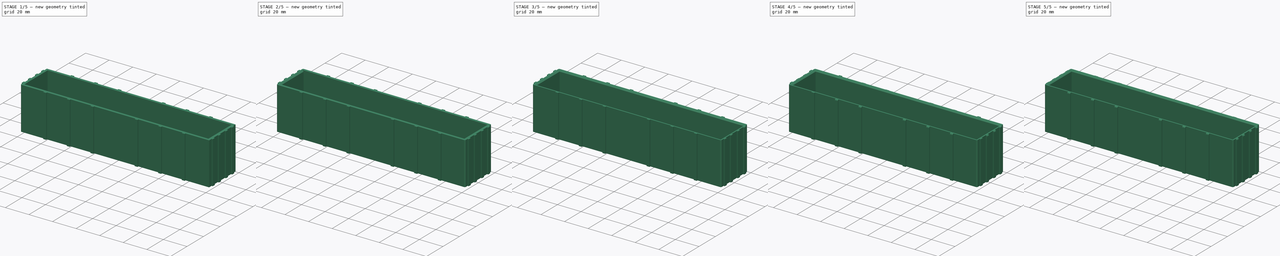
[diagram: build sequence overview — one tinted view per stage of 5, left to right]
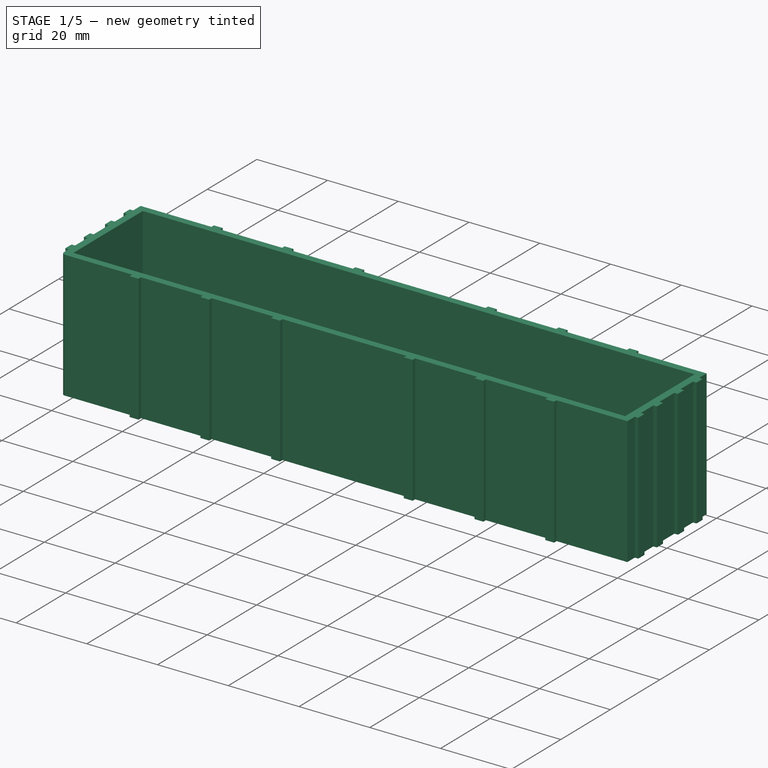
[diagram: stage 1 of 5 — iso view after this stage's code; geometry added in this stage tinted green]
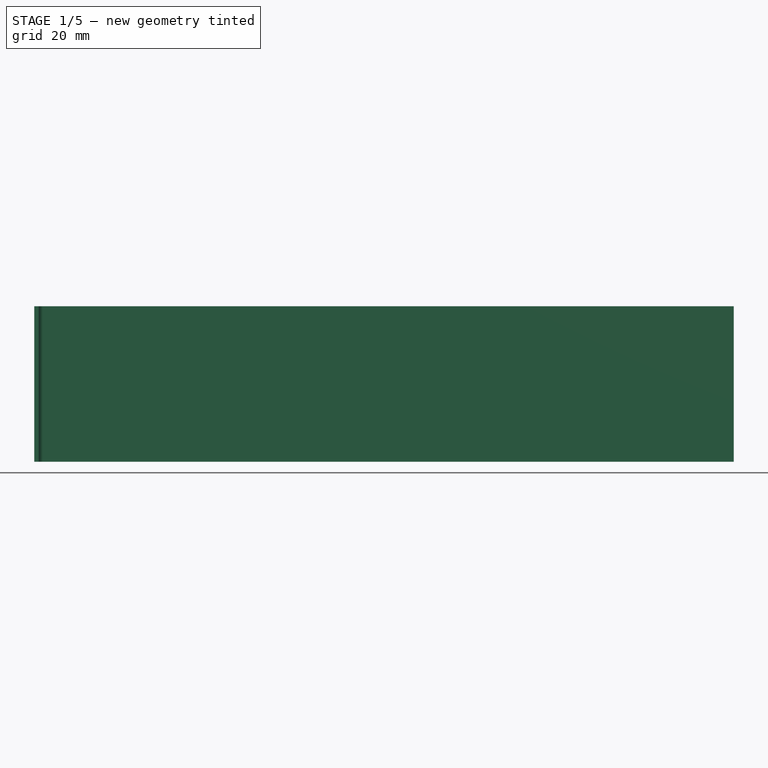
[diagram: stage 1 of 5 — front view after this stage's code; geometry added in this stage tinted green]
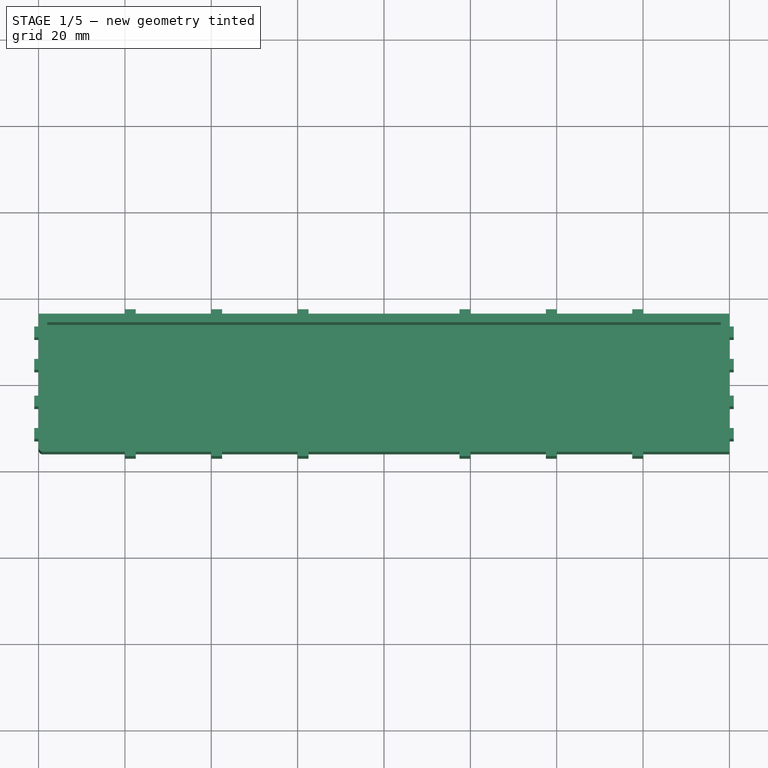
[diagram: stage 1 of 5 — top view after this stage's code; geometry added in this stage tinted green]
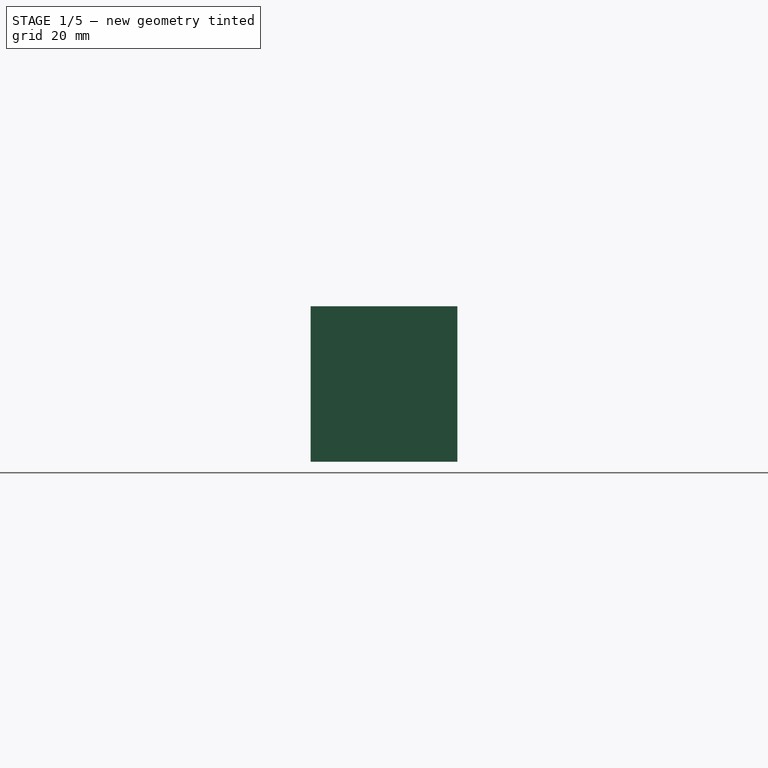
[diagram: stage 1 of 5 — right view after this stage's code; geometry added in this stage tinted green]
FCSTD DOCUMENT  (FreeCAD 0.18R16146 (Git))
Label: goods-open-carrier
License: All rights reserved
LicenseURL: http://en.wikipedia.org/wiki/All_rights_reserved
objects: PartDesign::Fillet×11, Sketcher::SketchObject×4, PartDesign::Chamfer×4, PartDesign::Pad×1, PartDesign::Pocket×1, PartDesign::Body×1
note: 24 computed .brp shape members not serialized (recipe doc carries the construction recipe); baked Part::Feature solids carry a one-line shape summary decoded from their .brp

FEATURE [Sketcher::SketchObject] Sketch
  MapMode = 5
  Support = -> [XY_Plane]
  sketch-geometry (86):
    g0: LineSegment StartX=-80 StartY=16 StartZ=0 EndX=-60 EndY=16 EndZ=0
    g1: LineSegment StartX=80 StartY=16 StartZ=0 EndX=80 EndY=13 EndZ=0
    g2: LineSegment StartX=80 StartY=-16 StartZ=0 EndX=60 EndY=-16 EndZ=0
    g3: LineSegment StartX=-80 StartY=-16 StartZ=0 EndX=-80 EndY=-13 EndZ=0
    g4: LineSegment [constr] StartX=-80 StartY=0 StartZ=0 EndX=80 EndY=0 EndZ=0
    g5: LineSegment [constr] StartX=0 StartY=16 StartZ=0 EndX=0 EndY=-16 EndZ=0
    g6: LineSegment StartX=-60 StartY=17 StartZ=0 EndX=-57.5 EndY=17 EndZ=0
    g7: LineSegment StartX=-57.5 StartY=17 StartZ=0 EndX=-57.5 EndY=16 EndZ=0
    g8: LineSegment StartX=-60 StartY=16 StartZ=0 EndX=-60 EndY=17 EndZ=0
    g9: LineSegment StartX=-57.5 StartY=16 StartZ=0 EndX=-40 EndY=16 EndZ=0
    g10: LineSegment StartX=-40 StartY=17 StartZ=0 EndX=-37.5 EndY=17 EndZ=0
    g11: LineSegment StartX=-37.5 StartY=17 StartZ=0 EndX=-37.5 EndY=16 EndZ=0
    g12: LineSegment StartX=-40 StartY=16 StartZ=0 EndX=-40 EndY=17 EndZ=0
    g13: LineSegment StartX=-37.5 StartY=16 StartZ=0 EndX=-20 EndY=16 EndZ=0
    g14: LineSegment StartX=-20 StartY=17 StartZ=0 EndX=-17.5 EndY=17 EndZ=0
    g15: LineSegment StartX=-17.5 StartY=17 StartZ=0 EndX=-17.5 EndY=16 EndZ=0
    g16: LineSegment StartX=-20 StartY=16 StartZ=0 EndX=-20 EndY=17 EndZ=0
    g17: LineSegment StartX=-17.5 StartY=16 StartZ=0 EndX=17.5 EndY=16 EndZ=0
    g18: LineSegment StartX=60 StartY=17 StartZ=0 EndX=57.5 EndY=17 EndZ=0
    g19: LineSegment StartX=57.5 StartY=17 StartZ=0 EndX=57.5 EndY=16 EndZ=0
    g20: LineSegment StartX=60 StartY=16 StartZ=0 EndX=60 EndY=17 EndZ=0
    g21: LineSegment StartX=40 StartY=17 StartZ=0 EndX=37.5 EndY=17 EndZ=0
    g22: LineSegment StartX=37.5 StartY=17 StartZ=0 EndX=37.5 EndY=16 EndZ=0
    g23: LineSegment StartX=40 StartY=16 StartZ=0 EndX=40 EndY=17 EndZ=0
    g24: LineSegment StartX=20 StartY=17 StartZ=0 EndX=17.5 EndY=17 EndZ=0
    g25: LineSegment StartX=17.5 StartY=17 StartZ=0 EndX=17.5 EndY=16 EndZ=0
    g26: LineSegment StartX=20 StartY=16 StartZ=0 EndX=20 EndY=17 EndZ=0
    g27: LineSegment StartX=20 StartY=16 StartZ=0 EndX=37.5 EndY=16 EndZ=0
    g28: LineSegment StartX=40 StartY=16 StartZ=0 EndX=57.5 EndY=16 EndZ=0
    g29: LineSegment StartX=60 StartY=16 StartZ=0 EndX=80 EndY=16 EndZ=0
    g30: LineSegment StartX=-60 StartY=-17 StartZ=0 EndX=-57.5 EndY=-17 EndZ=0
    g31: LineSegment StartX=-57.5 StartY=-17 StartZ=0 EndX=-57.5 EndY=-16 EndZ=0
    g32: LineSegment StartX=-60 StartY=-16 StartZ=0 EndX=-60 EndY=-17 EndZ=0
    g33: LineSegment StartX=-40 StartY=-17 StartZ=0 EndX=-37.5 EndY=-17 EndZ=0
    g34: LineSegment StartX=-37.5 StartY=-17 StartZ=0 EndX=-37.5 EndY=-16 EndZ=0
    g35: LineSegment StartX=-40 StartY=-16 StartZ=0 EndX=-40 EndY=-17 EndZ=0
    g36: LineSegment StartX=-20 StartY=-17 StartZ=0 EndX=-17.5 EndY=-17 EndZ=0
    g37: LineSegment StartX=-17.5 StartY=-17 StartZ=0 EndX=-17.5 EndY=-16 EndZ=0
    g38: LineSegment StartX=-20 StartY=-16 StartZ=0 EndX=-20 EndY=-17 EndZ=0
    g39: LineSegment StartX=60 StartY=-17 StartZ=0 EndX=57.5 EndY=-17 EndZ=0
    g40: LineSegment StartX=57.5 StartY=-17 StartZ=0 EndX=57.5 EndY=-16 EndZ=0
    g41: LineSegment StartX=60 StartY=-16 StartZ=0 EndX=60 EndY=-17 EndZ=0
    g42: LineSegment StartX=40 StartY=-17 StartZ=0 EndX=37.5 EndY=-17 EndZ=0
    g43: LineSegment StartX=37.5 StartY=-17 StartZ=0 EndX=37.5 EndY=-16 EndZ=0
    g44: LineSegment StartX=40 StartY=-16 StartZ=0 EndX=40 EndY=-17 EndZ=0
    g45: LineSegment StartX=20 StartY=-17 StartZ=0 EndX=17.5 EndY=-17 EndZ=0
    g46: LineSegment StartX=17.5 StartY=-17 StartZ=0 EndX=17.5 EndY=-16 EndZ=0
    g47: LineSegment StartX=20 StartY=-16 StartZ=0 EndX=20 EndY=-17 EndZ=0
    g48: LineSegment StartX=-60 StartY=-16 StartZ=0 EndX=-80 EndY=-16 EndZ=0
    g49: LineSegment StartX=-40 StartY=-16 StartZ=0 EndX=-57.5 EndY=-16 EndZ=0
    g50: LineSegment StartX=-20 StartY=-16 StartZ=0 EndX=-37.5 EndY=-16 EndZ=0
    g51: LineSegment StartX=17.5 StartY=-16 StartZ=0 EndX=-17.5 EndY=-16 EndZ=0
    g52: LineSegment StartX=37.5 StartY=-16 StartZ=0 EndX=20 EndY=-16 EndZ=0
    g53: LineSegment StartX=57.5 StartY=-16 StartZ=0 EndX=40 EndY=-16 EndZ=0
    g54: LineSegment StartX=-81 StartY=13 StartZ=0 EndX=-80 EndY=13 EndZ=0
    g55: LineSegment StartX=-80 StartY=10.5 StartZ=0 EndX=-81 EndY=10.5 EndZ=0
    g56: LineSegment StartX=-81 StartY=10.5 StartZ=0 EndX=-81 EndY=13 EndZ=0
    g57: LineSegment StartX=-80 StartY=13 StartZ=0 EndX=-80 EndY=16 EndZ=0
    g58: LineSegment StartX=-81 StartY=5.5 StartZ=0 EndX=-80 EndY=5.5 EndZ=0
    g59: LineSegment StartX=-80 StartY=3 StartZ=0 EndX=-81 EndY=3 EndZ=0
    g60: LineSegment StartX=-81 StartY=3 StartZ=0 EndX=-81 EndY=5.5 EndZ=0
    g61: LineSegment StartX=-80 StartY=5.5 StartZ=0 EndX=-80 EndY=10.5 EndZ=0
    g62: LineSegment StartX=-80 StartY=-3 StartZ=0 EndX=-81 EndY=-3 EndZ=0
    g63: LineSegment StartX=-81 StartY=-13 StartZ=0 EndX=-80 EndY=-13 EndZ=0
    g64: LineSegment StartX=-80 StartY=-10.5 StartZ=0 EndX=-81 EndY=-10.5 EndZ=0
    g65: LineSegment StartX=-81 StartY=-10.5 StartZ=0 EndX=-81 EndY=-13 EndZ=0
    g66: LineSegment StartX=-81 StartY=-5.5 StartZ=0 EndX=-80 EndY=-5.5 EndZ=0
    g67: LineSegment StartX=-81 StartY=-3 StartZ=0 EndX=-81 EndY=-5.5 EndZ=0
    g68: LineSegment StartX=-80 StartY=-3 StartZ=0 EndX=-80 EndY=3 EndZ=0
    g69: LineSegment StartX=-80 StartY=-10.5 StartZ=0 EndX=-80 EndY=-5.5 EndZ=0
    g70: LineSegment StartX=81 StartY=13 StartZ=0 EndX=80 EndY=13 EndZ=0
    g71: LineSegment StartX=80 StartY=10.5 StartZ=0 EndX=81 EndY=10.5 EndZ=0
    g72: LineSegment StartX=81 StartY=10.5 StartZ=0 EndX=81 EndY=13 EndZ=0
    g73: LineSegment StartX=81 StartY=5.5 StartZ=0 EndX=80 EndY=5.5 EndZ=0
    g74: LineSegment StartX=80 StartY=3 StartZ=0 EndX=81 EndY=3 EndZ=0
    g75: LineSegment StartX=81 StartY=3 StartZ=0 EndX=81 EndY=5.5 EndZ=0
    g76: LineSegment StartX=80 StartY=-3 StartZ=0 EndX=81 EndY=-3 EndZ=0
    g77: LineSegment StartX=81 StartY=-13 StartZ=0 EndX=80 EndY=-13 EndZ=0
    g78: LineSegment StartX=80 StartY=-10.5 StartZ=0 EndX=81 EndY=-10.5 EndZ=0
    g79: LineSegment StartX=81 StartY=-10.5 StartZ=0 EndX=81 EndY=-13 EndZ=0
    g80: LineSegment StartX=81 StartY=-5.5 StartZ=0 EndX=80 EndY=-5.5 EndZ=0
    g81: LineSegment StartX=81 StartY=-3 StartZ=0 EndX=81 EndY=-5.5 EndZ=0
    g82: LineSegment StartX=80 StartY=10.5 StartZ=0 EndX=80 EndY=5.5 EndZ=0
    g83: LineSegment StartX=80 StartY=3 StartZ=0 EndX=80 EndY=-3 EndZ=0
    g84: LineSegment StartX=80 StartY=-5.5 StartZ=0 EndX=80 EndY=-10.5 EndZ=0
    g85: LineSegment StartX=80 StartY=-13 StartZ=0 EndX=80 EndY=-16 EndZ=0
  constraints (240):
    c: Coincident(g29,g1)
    c: Coincident(g85,g2)
    c: Coincident(g48,g3)
    c: Coincident(g57,g0)
    c: Symmetric(g29,g0,g-2)
    c: Symmetric(g0,g48,g-1)
    c: Symmetric(g48,g85,g-2)
    c: Symmetric(g4,g4,g-2)
    c: PointOnObject(g4,g-1)
    c: DistanceX(g4,g4) = 160
    c: PointOnObject(g4,g1)
    c: DistanceY(g5,g5) = 32
    c: PointOnObject(g5,g-2)
    c: Symmetric(g5,g5,g-1)
    c: PointOnObject(g5,g0)
    c: Coincident(g6,g7)
    c: Coincident(g8,g6)
    c: Horizontal(g6)
    c: Vertical(g7)
    c: Vertical(g8)
    c: Tangent(g0,g9)
    c: Coincident(g8,g0)
    c: Coincident(g7,g9)
    c: DistanceX(g6,g6) = 2.5
    c: DistanceY(g8,g8) = 1
    c: DistanceX(g0,g0) = 20
    c: Coincident(g10,g11)
    c: Coincident(g12,g10)
    c: Horizontal(g10)
    c: Vertical(g11)
    c: Vertical(g12)
    c: Tangent(g9,g13)
    c: Coincident(g12,g9)
    c: Coincident(g11,g13)
    c: DistanceX(g10,g10) = 2.5
    c: DistanceY(g12,g12) = 1
    c: DistanceX(g0,g9) = 40
    c: Coincident(g14,g15)
    c: Coincident(g16,g14)
    c: Horizontal(g14)
    c: Vertical(g15)
    c: Vertical(g16)
    c: Tangent(g13,g17)
    c: Coincident(g16,g13)
    c: Coincident(g15,g17)
    c: DistanceX(g14,g14) = 2.5
    c: DistanceY(g16,g16) = 1
    c: DistanceX(g0,g13) = 60
    c: Coincident(g18,g19)
    c: Coincident(g20,g18)
    c: Horizontal(g18)
    c: Vertical(g19)
    c: Vertical(g20)
    c: Coincident(g21,g22)
    c: Coincident(g23,g21)
    c: Horizontal(g21)
    c: Vertical(g22)
    c: Vertical(g23)
    c: Coincident(g24,g25)
    c: Coincident(g26,g24)
    c: Horizontal(g24)
    c: Vertical(g25)
    c: Vertical(g26)
    c: PointOnObject(g17,g25)
    c: Tangent(g17,g27)
    c: PointOnObject(g27,g22)
    c: Tangent(g27,g28)
    c: PointOnObject(g29,g20)
    c: Tangent(g28,g29)
    c: DistanceX(g21,g21) = 2.5
    c: DistanceY(g23,g23) = 1
    c: DistanceX(g23,g1) = 40
    c: DistanceY(g19,g19) = 1
    c: DistanceX(g18,g18) = 2.5
    c: DistanceX(g20,g1) = 20
    c: DistanceX(g24,g24) = 2.5
    c: DistanceY(g25,g25) = 1
    c: DistanceX(g26,g1) = 60
    c: Equal(g26,g25)
    c: Equal(g23,g22)
    c: Equal(g19,g20)
    c: Coincident(g26,g27)
    c: Coincident(g23,g28)
    c: Coincident(g19,g28)
    c: Coincident(g30,g31)
    c: Coincident(g32,g30)
    c: Horizontal(g30)
    c: Vertical(g31)
    c: Vertical(g32)
    c: Coincident(g33,g34)
    c: Coincident(g35,g33)
    c: Horizontal(g33)
    c: Vertical(g34)
    c: Vertical(g35)
    c: Coincident(g36,g37)
    c: Coincident(g38,g36)
    c: Horizontal(g36)
    c: Vertical(g37)
    c: Vertical(g38)
    c: Coincident(g39,g40)
    c: Coincident(g41,g39)
    c: Horizontal(g39)
    c: Vertical(g40)
    c: Vertical(g41)
    c: Coincident(g42,g43)
    c: Coincident(g44,g42)
    c: Vertical(g43)
    c: Vertical(g44)
    c: Coincident(g45,g46)
    c: Coincident(g47,g45)
    c: Horizontal(g45)
    c: Vertical(g46)
    c: Vertical(g47)
    c: Equal(g47,g46)
    c: Equal(g44,g43)
    c: Equal(g40,g41)
    c: Tangent(g2,g48)
    c: Tangent(g2,g49)
    c: Tangent(g2,g50)
    c: PointOnObject(g51,g46)
    c: Tangent(g2,g51)
    c: Tangent(g2,g52)
    c: PointOnObject(g53,g40)
    c: Tangent(g2,g53)
    c: Coincident(g41,g2)
    c: Coincident(g44,g53)
    c: Coincident(g43,g52)
    c: Coincident(g47,g52)
    c: Coincident(g37,g51)
    c: Coincident(g34,g50)
    c: Coincident(g31,g49)
    c: DistanceY(g32,g32) = 1
    c: DistanceX(g30,g30) = 2.5
    c: DistanceY(g35,g35) = 1
    c: DistanceX(g33,g33) = 2.5
    c: DistanceY(g38,g38) = 1
    c: DistanceX(g36,g36) = 2.5
    c: DistanceY(g47,g47) = 1
    c: DistanceX(g45,g45) = 2.5
    c: DistanceY(g43,g43) = 1
    c: DistanceX(g42,g42) = 2.5
    c: DistanceY(g40,g40) = 1
    c: DistanceX(g39,g39) = 2.5
    c: DistanceX(g2,g85) = 20
    c: DistanceX(g44,g85) = 40
    c: DistanceX(g47,g85) = 60
    c: DistanceX(g3,g32) = 20
    c: DistanceX(g3,g35) = 40
    c: DistanceX(g3,g38) = 60
    c: Coincident(g32,g48)
    c: Coincident(g35,g49)
    c: Coincident(g38,g50)
    c: Coincident(g55,g56)
    c: Coincident(g56,g54)
    c: Horizontal(g54)
    c: Horizontal(g55)
    c: Vertical(g56)
    c: Tangent(g3,g57)
    c: Coincident(g54,g57)
    c: Coincident(g55,g61)
    c: DistanceX(g54,g54) = 1
    c: DistanceY(g56,g56) = 2.5
    c: DistanceY(g54,g0) = 3
    c: Coincident(g59,g60)
    c: Coincident(g60,g58)
    c: Horizontal(g58)
    c: Horizontal(g59)
    c: Vertical(g60)
    c: Tangent(g3,g61)
    c: Coincident(g58,g61)
    c: Coincident(g59,g68)
    c: DistanceY(g60,g60) = 2.5
    c: DistanceX(g58,g58) = 1
    c: DistanceY(g4,g68) = 3
    c: Coincident(g64,g65)
    c: Coincident(g65,g63)
    c: Horizontal(g63)
    c: Horizontal(g64)
    c: Vertical(g65)
    c: Coincident(g62,g67)
    c: Coincident(g67,g66)
    c: Horizontal(g66)
    c: Horizontal(g62)
    c: Vertical(g67)
    c: Tangent(g3,g68)
    c: Tangent(g3,g69)
    c: DistanceY(g67,g67) = 2.5
    c: DistanceY(g65,g65) = 2.5
    c: DistanceX(g62,g62) = 1
    c: DistanceX(g64,g64) = 1
    c: DistanceY(g62,g4) = 3
    c: DistanceY(g3,g3) = 3
    c: Coincident(g64,g69)
    c: Coincident(g3,g63)
    c: Coincident(g66,g69)
    c: Coincident(g62,g68)
    c: Coincident(g71,g72)
    c: Coincident(g72,g70)
    c: Horizontal(g70)
    c: Horizontal(g71)
    c: Vertical(g72)
    c: Coincident(g74,g75)
    c: Coincident(g75,g73)
    c: Horizontal(g73)
    c: Horizontal(g74)
    c: Vertical(g75)
    c: Coincident(g78,g79)
    c: Coincident(g79,g77)
    c: Horizontal(g77)
    c: Horizontal(g78)
    c: Vertical(g79)
    c: Coincident(g76,g81)
    c: Coincident(g81,g80)
    c: Horizontal(g80)
    c: Horizontal(g76)
    c: Vertical(g81)
    c: Tangent(g1,g82)
    c: Tangent(g82,g83)
    c: Tangent(g83,g84)
    c: Tangent(g84,g85)
    c: DistanceY(g72,g72) = 2.5
    c: DistanceY(g75,g75) = 2.5
    c: DistanceY(g81,g81) = 2.5
    c: DistanceY(g79,g79) = 2.5
    c: DistanceX(g70,g70) = 1
    c: DistanceX(g73,g73) = 1
    c: DistanceX(g76,g76) = 1
    c: DistanceX(g78,g78) = 1
    c: Coincident(g77,g85)
    c: Coincident(g78,g84)
    c: Coincident(g80,g84)
    c: Coincident(g76,g83)
    c: Coincident(g74,g83)
    c: Coincident(g73,g82)
    c: DistanceY(g1,g1) = 3
    c: DistanceY(g4,g74) = 3
    c: DistanceY(g76,g4) = 3
    c: DistanceY(g2,g77) = 3
    c: Coincident(g71,g82)
    c: Coincident(g70,g1)
FEATURE [PartDesign::Pad] Pad
  Length = 36
  Length2 = 100
  Profile = -> Sketch
  Type = 0
FEATURE [Sketcher::SketchObject] Sketch001
  MapMode = 5
  Placement = pos=(0,0,36) rot=(0,0,1;0rad)
  Support = -> [Pad]
  sketch-geometry (4):
    g0: LineSegment StartX=-78 StartY=14 StartZ=0 EndX=78 EndY=14 EndZ=0
    g1: LineSegment StartX=78 StartY=14 StartZ=0 EndX=78 EndY=-14 EndZ=0
    g2: LineSegment StartX=78 StartY=-14 StartZ=0 EndX=-78 EndY=-14 EndZ=0
    g3: LineSegment StartX=-78 StartY=-14 StartZ=0 EndX=-78 EndY=14 EndZ=0
  constraints (9):
    c: Coincident(g0,g1)
    c: Coincident(g1,g2)
    c: Coincident(g2,g3)
    c: Coincident(g3,g0)
    c: Symmetric(g0,g0,g-2)
    c: Symmetric(g0,g2,g-1)
    c: Symmetric(g2,g1,g-2)
    c: DistanceX(g0,g0) = 156
    c: DistanceY(g3,g3) = 28
FEATURE [PartDesign::Pocket] Pocket
  BaseFeature = -> Pad
  Length = 35
  Length2 = 100
  Profile = -> Sketch001
  Type = 0
FEATURE [PartDesign::Fillet] Fillet
  Base = -> Pocket [Edge251]
  BaseFeature = -> Pocket
  Radius = 1
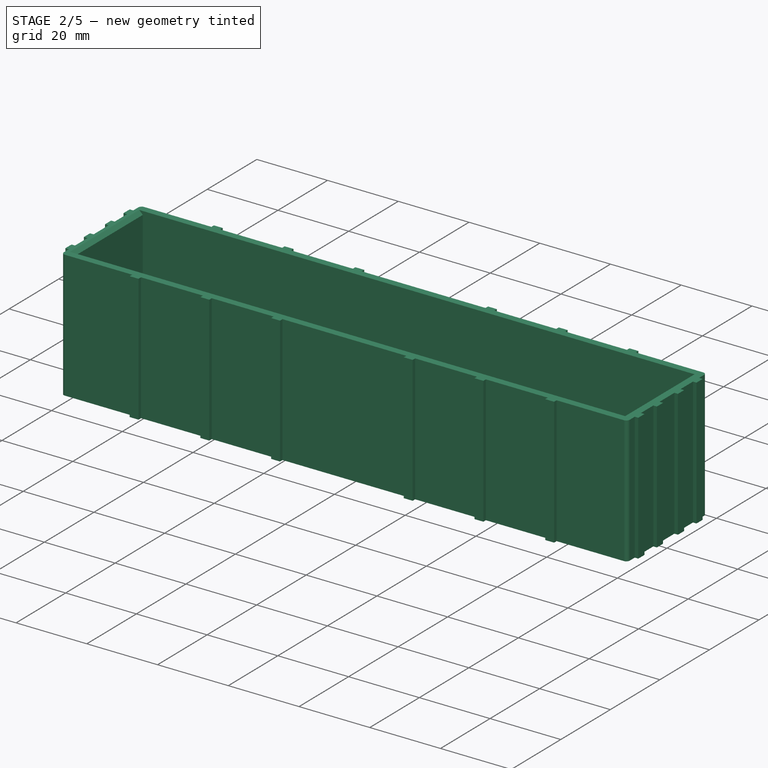
[diagram: stage 2 of 5 — iso view after this stage's code; geometry added in this stage tinted green]
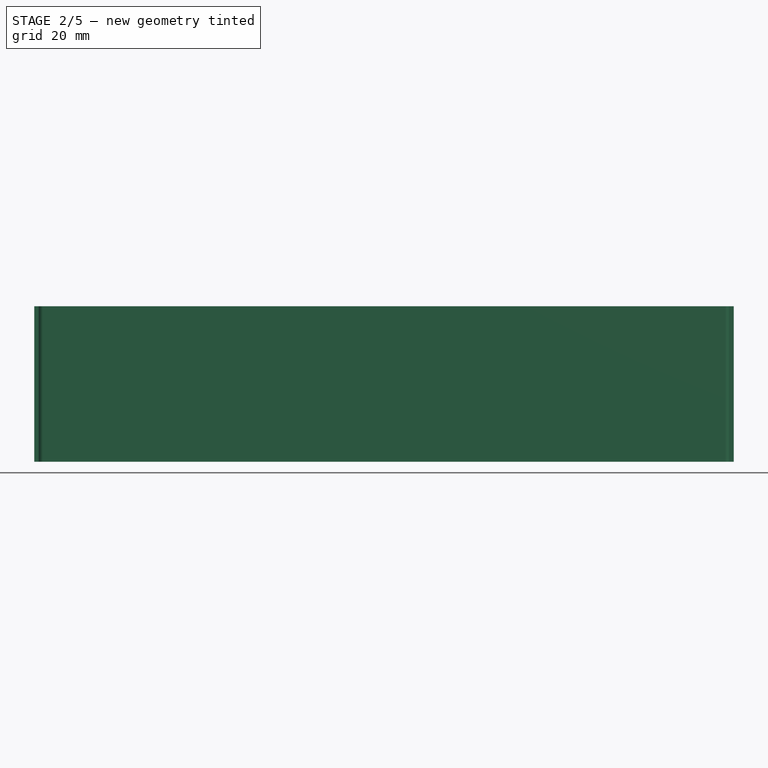
[diagram: stage 2 of 5 — front view after this stage's code; geometry added in this stage tinted green]
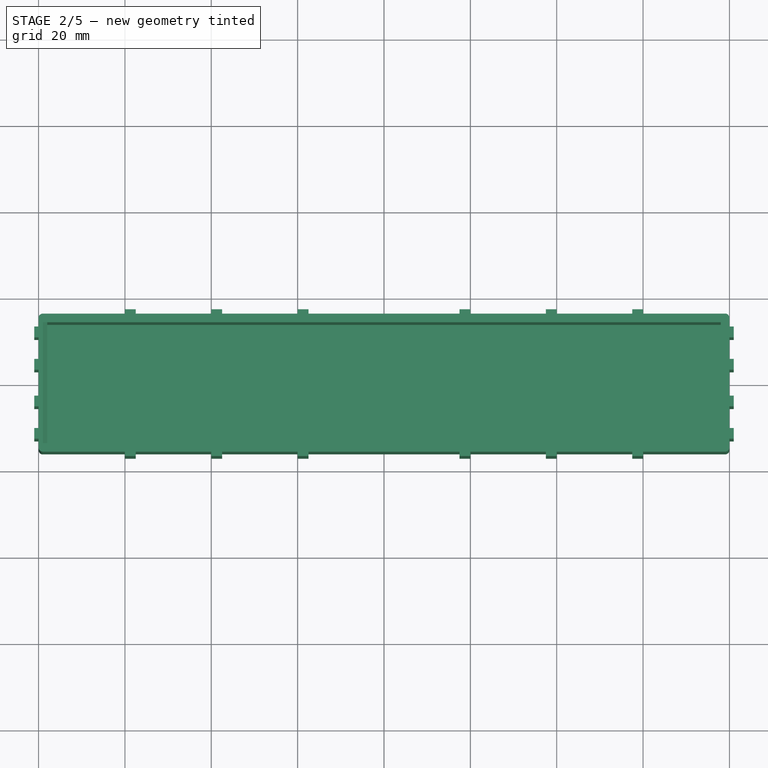
[diagram: stage 2 of 5 — top view after this stage's code; geometry added in this stage tinted green]
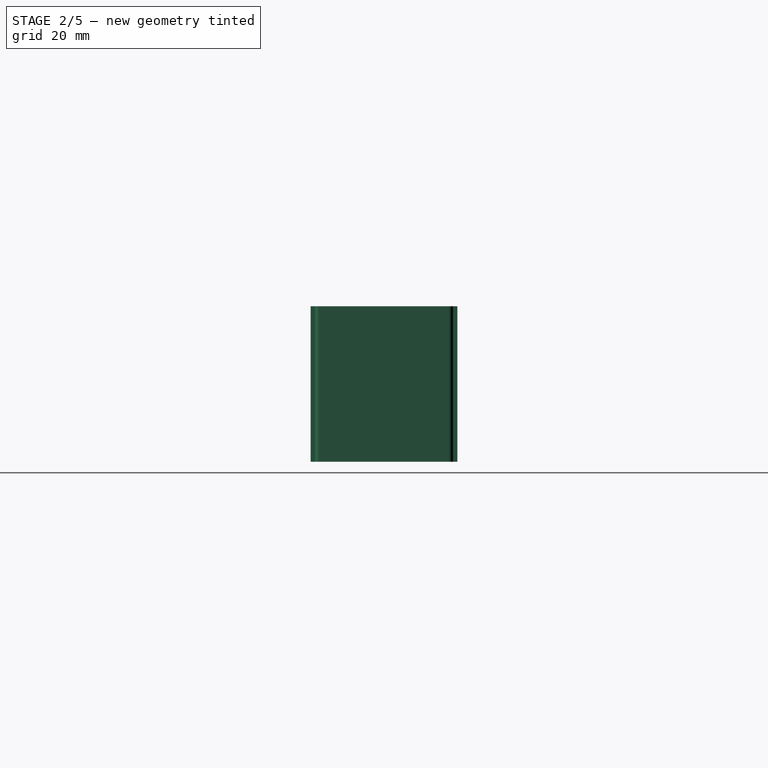
[diagram: stage 2 of 5 — right view after this stage's code; geometry added in this stage tinted green]
FEATURE [PartDesign::Fillet] Fillet001
  Base = -> Fillet [Edge157]
  BaseFeature = -> Fillet
  Radius = 1
FEATURE [PartDesign::Fillet] Fillet002
  Base = -> Fillet001 [Edge190]
  BaseFeature = -> Fillet001
  Radius = 1
FEATURE [PartDesign::Fillet] Fillet003
  Base = -> Fillet002 [Edge159]
  BaseFeature = -> Fillet002
  Radius = 1
FEATURE [PartDesign::Chamfer] Chamfer
  Base = -> Fillet003 [Edge268]
  BaseFeature = -> Fillet003
  Size = 1
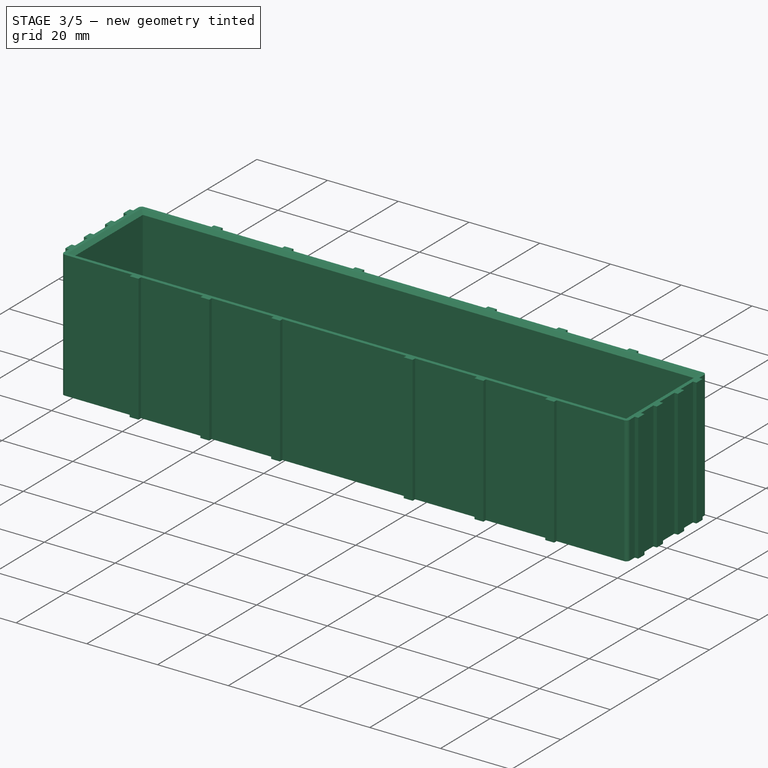
[diagram: stage 3 of 5 — iso view after this stage's code; geometry added in this stage tinted green]
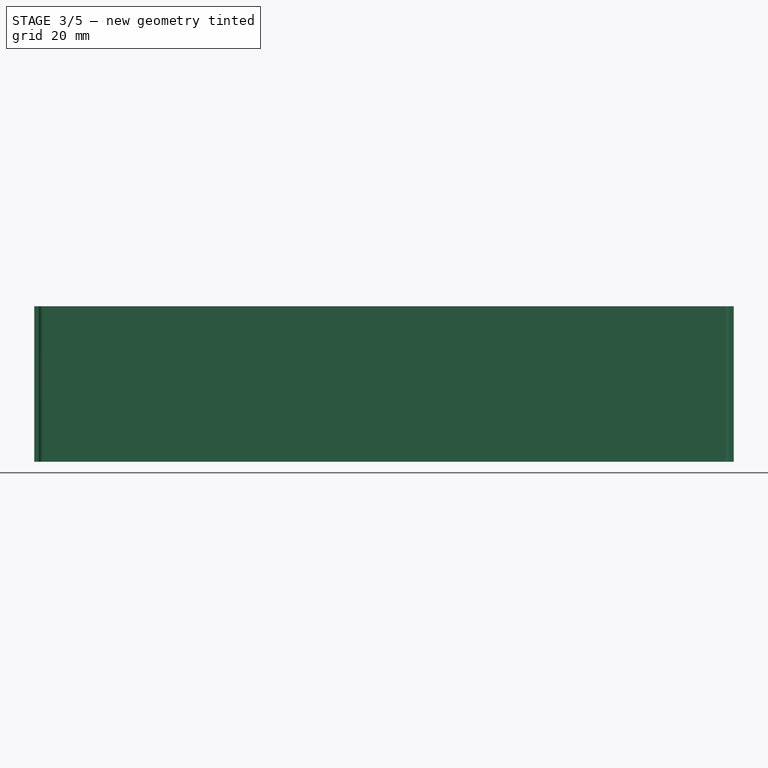
[diagram: stage 3 of 5 — front view after this stage's code; geometry added in this stage tinted green]
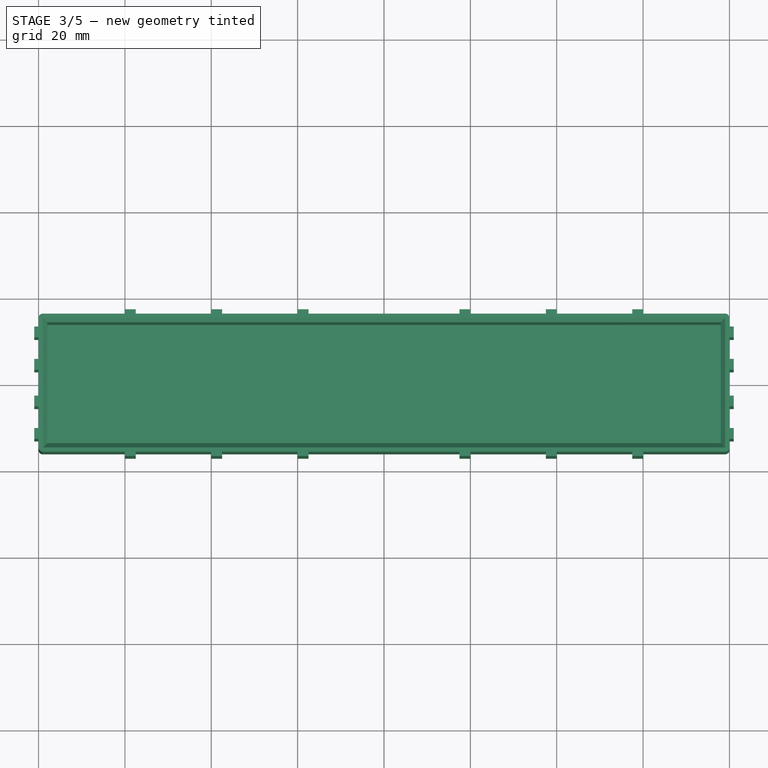
[diagram: stage 3 of 5 — top view after this stage's code; geometry added in this stage tinted green]
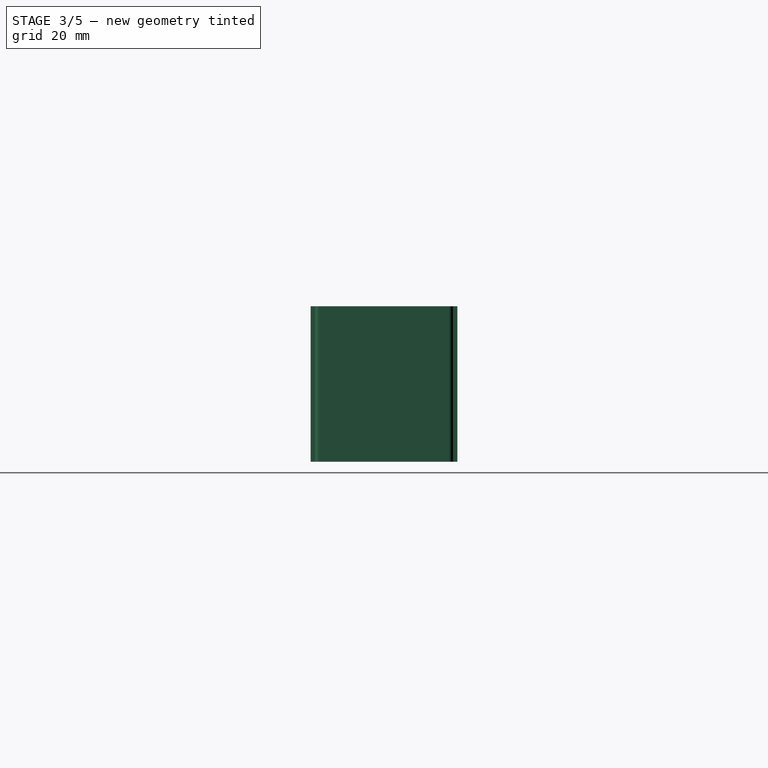
[diagram: stage 3 of 5 — right view after this stage's code; geometry added in this stage tinted green]
FEATURE [PartDesign::Chamfer] Chamfer001
  Base = -> Chamfer [Edge6]
  BaseFeature = -> Chamfer
  Size = 1
FEATURE [PartDesign::Chamfer] Chamfer002
  Base = -> Chamfer001 [Edge6]
  BaseFeature = -> Chamfer001
  Size = 1
FEATURE [PartDesign::Chamfer] Chamfer003
  Base = -> Chamfer002 [Edge2]
  BaseFeature = -> Chamfer002
  Size = 1
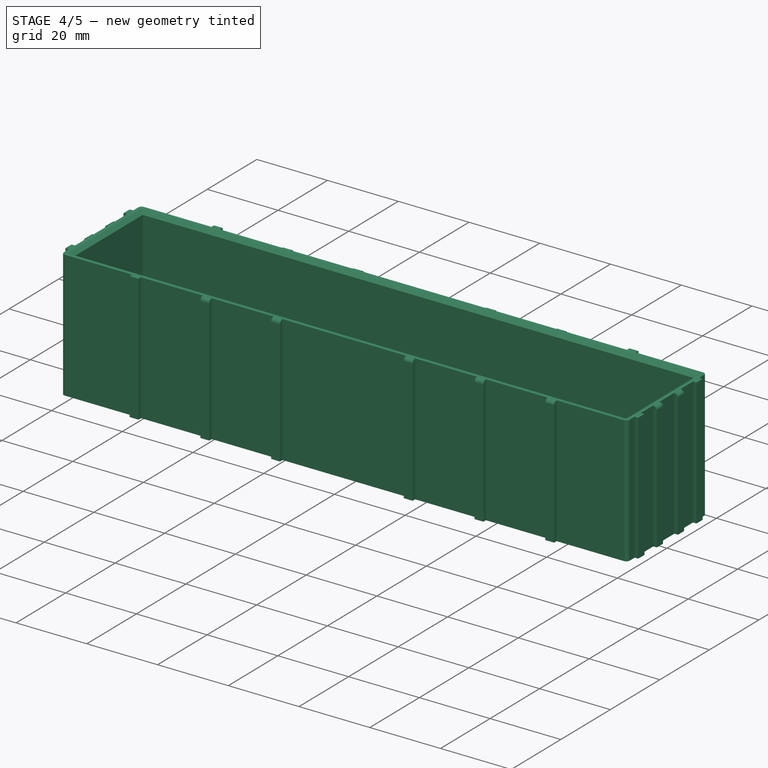
[diagram: stage 4 of 5 — iso view after this stage's code; geometry added in this stage tinted green]
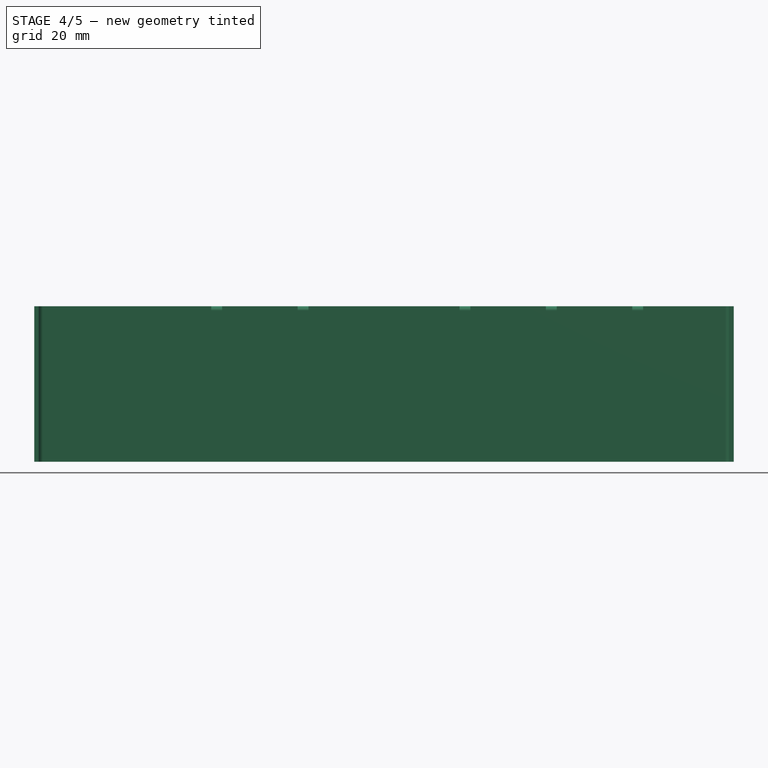
[diagram: stage 4 of 5 — front view after this stage's code; geometry added in this stage tinted green]
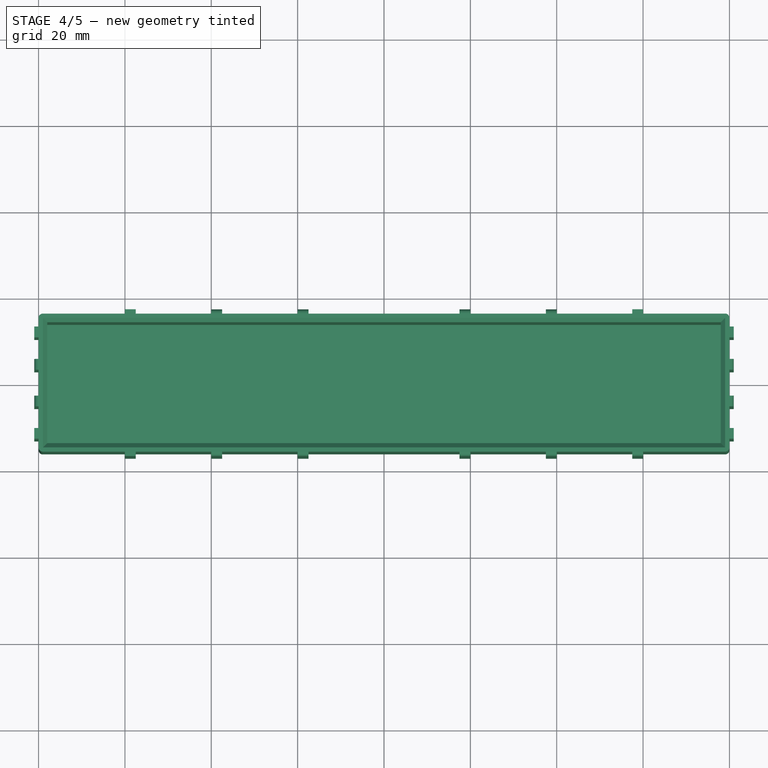
[diagram: stage 4 of 5 — top view after this stage's code; geometry added in this stage tinted green]
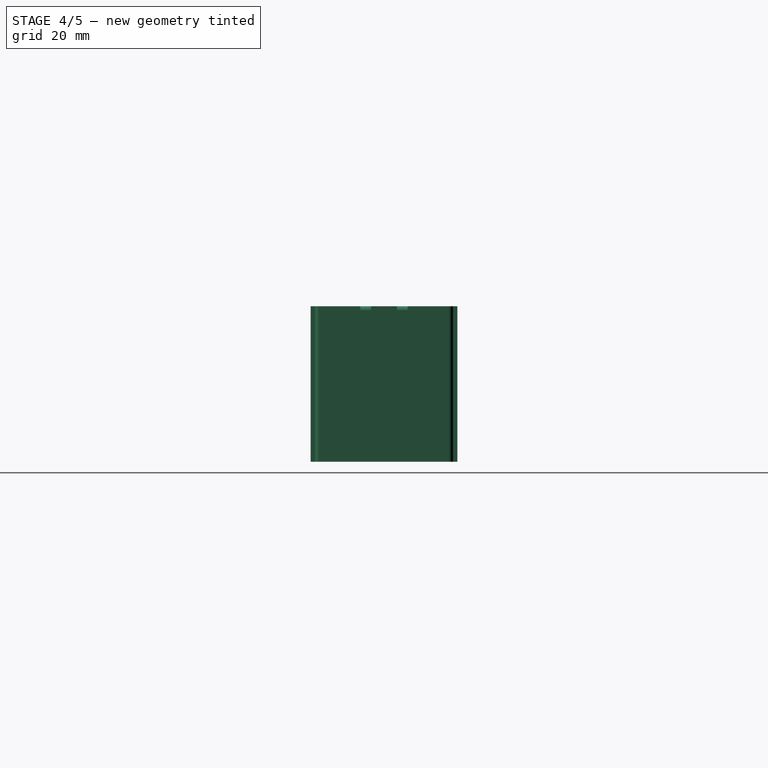
[diagram: stage 4 of 5 — right view after this stage's code; geometry added in this stage tinted green]
FEATURE [PartDesign::Fillet] Fillet004
  Base = -> Chamfer003 [Edge44]
  BaseFeature = -> Chamfer003
  Radius = 1
FEATURE [PartDesign::Fillet] Fillet005
  Base = -> Fillet004 [Edge6]
  BaseFeature = -> Fillet004
  Radius = 1
FEATURE [PartDesign::Fillet] Fillet006
  Base = -> Fillet005 [Edge47,Edge55,Edge78,Edge70,Edge11,Edge19,Edge83,Edge62,Edge26,Edge34]
  BaseFeature = -> Fillet005
  Radius = 1
FEATURE [PartDesign::Fillet] Fillet007
  Base = -> Fillet006 [Edge19]
  BaseFeature = -> Fillet006
  Radius = 1
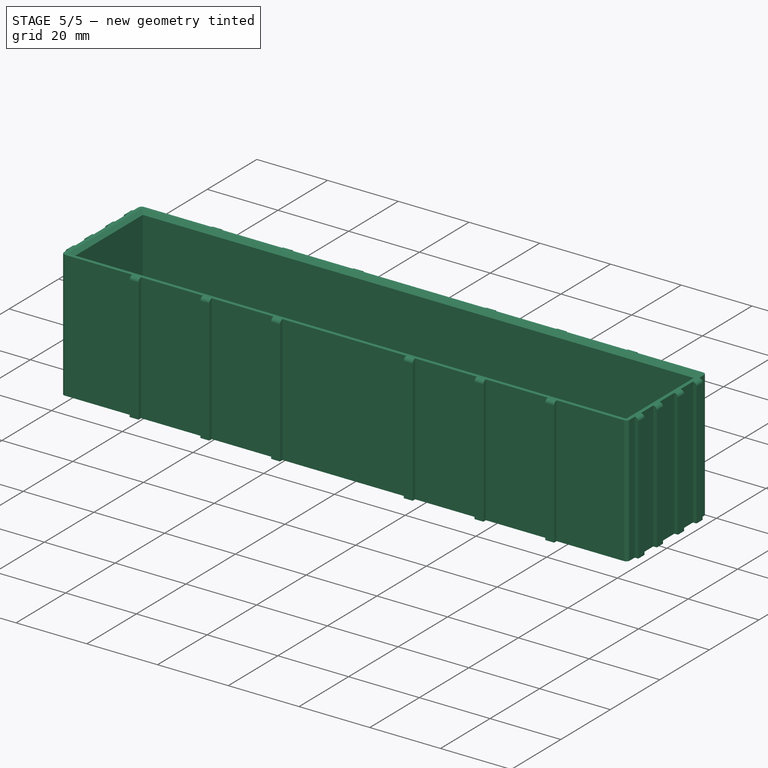
[diagram: stage 5 of 5 — iso view after this stage's code; geometry added in this stage tinted green]
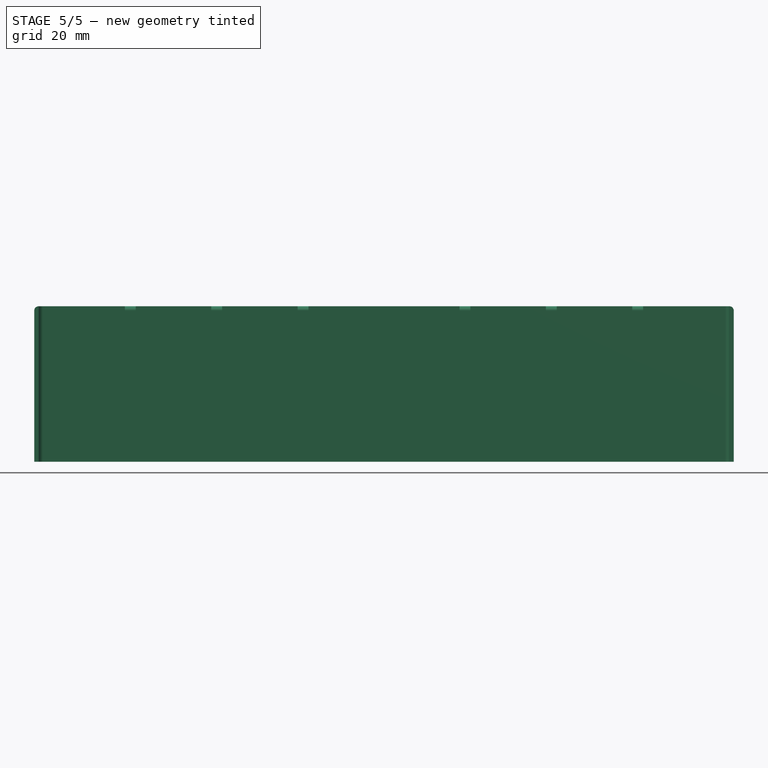
[diagram: stage 5 of 5 — front view after this stage's code; geometry added in this stage tinted green]
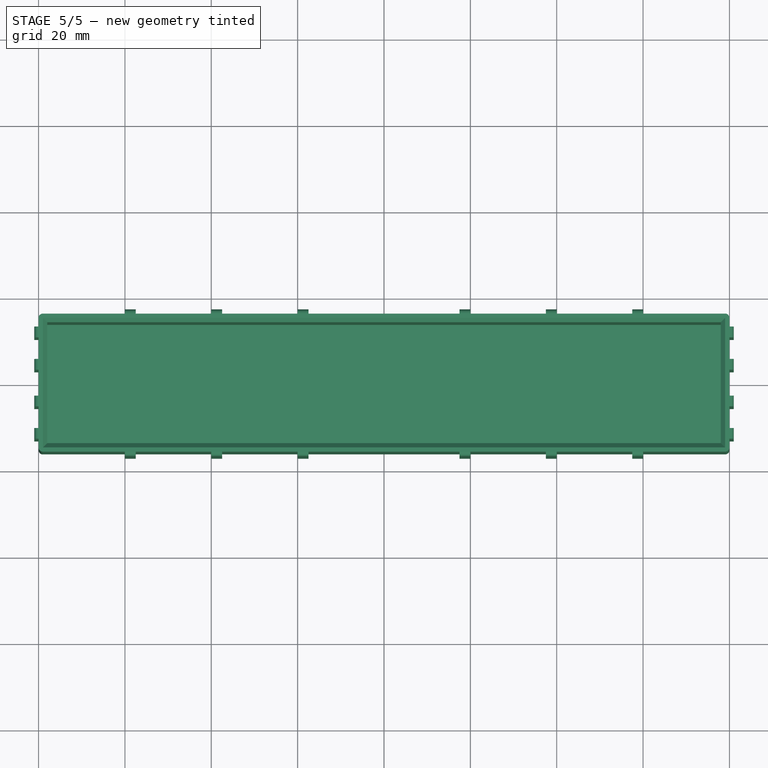
[diagram: stage 5 of 5 — top view after this stage's code; geometry added in this stage tinted green]
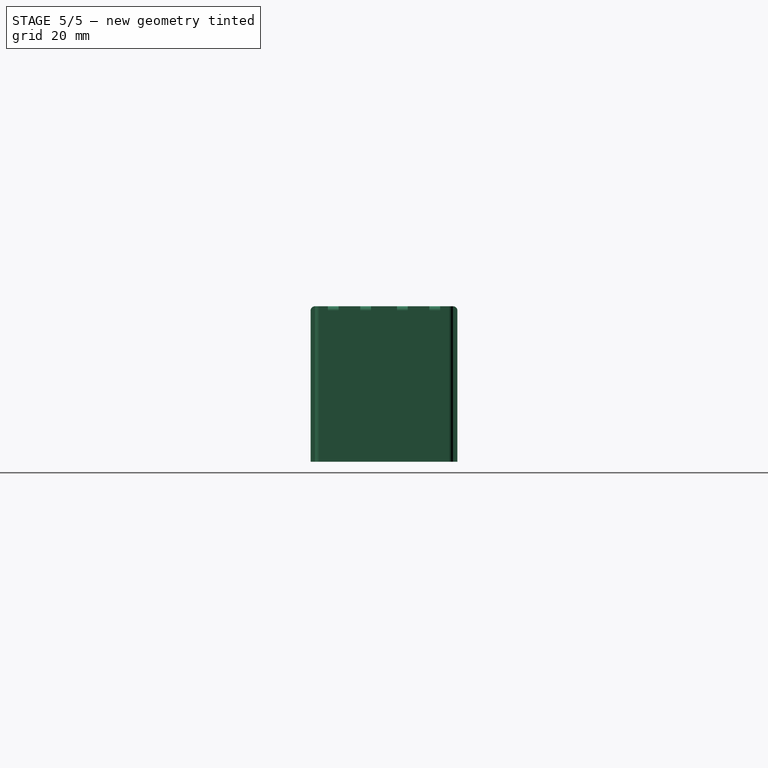
[diagram: stage 5 of 5 — right view after this stage's code; geometry added in this stage tinted green]
FEATURE [PartDesign::Fillet] Fillet008
  Base = -> Fillet007 [Edge26,Edge10]
  BaseFeature = -> Fillet007
  Radius = 1
FEATURE [PartDesign::Fillet] Fillet009
  Base = -> Fillet008 [Edge35,Edge42,Edge54,Edge47]
  BaseFeature = -> Fillet008
  Radius = 1
FEATURE [PartDesign::Fillet] Fillet010
  Base = -> Fillet009 [Edge23]
  BaseFeature = -> Fillet009
  Radius = 1
FEATURE [Sketcher::SketchObject] Sketch002
  MapMode = 5
  Placement = pos=(0,-16,0) rot=(1,0,0;1.5708rad)
  Support = -> [Fillet010]
FEATURE [Sketcher::SketchObject] Sketch003  label="pipes"
  MapMode = 5
  Placement = pos=(0,-16,0) rot=(1,0,0;1.5708rad)
  Support = -> [Fillet010]
FEATURE [PartDesign::Body] Body
  Group = -> [Sketch,Pad,Sketch001,Pocket,Fillet,Fillet001,Fillet002,Fillet003,Chamfer,Chamfer001,Chamfer002,Chamfer003,Fillet004,Fillet005,Fillet006,Fillet007,Fillet008,Fillet009,Fillet010,Sketch002,Sketch003]
  Origin = -> Origin
  Tip = -> Fillet010
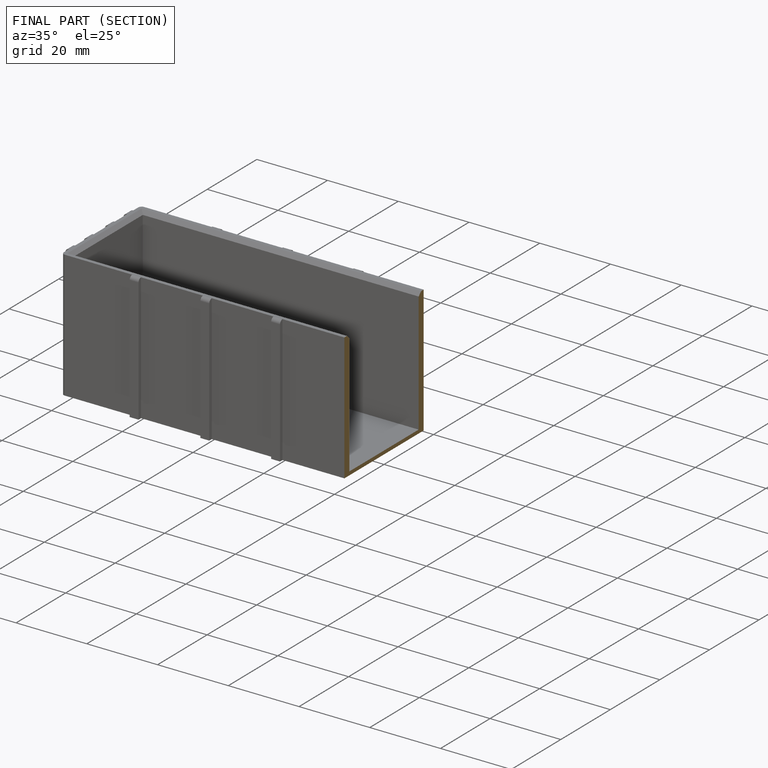
[diagram: finished part — half-section view (interior)]
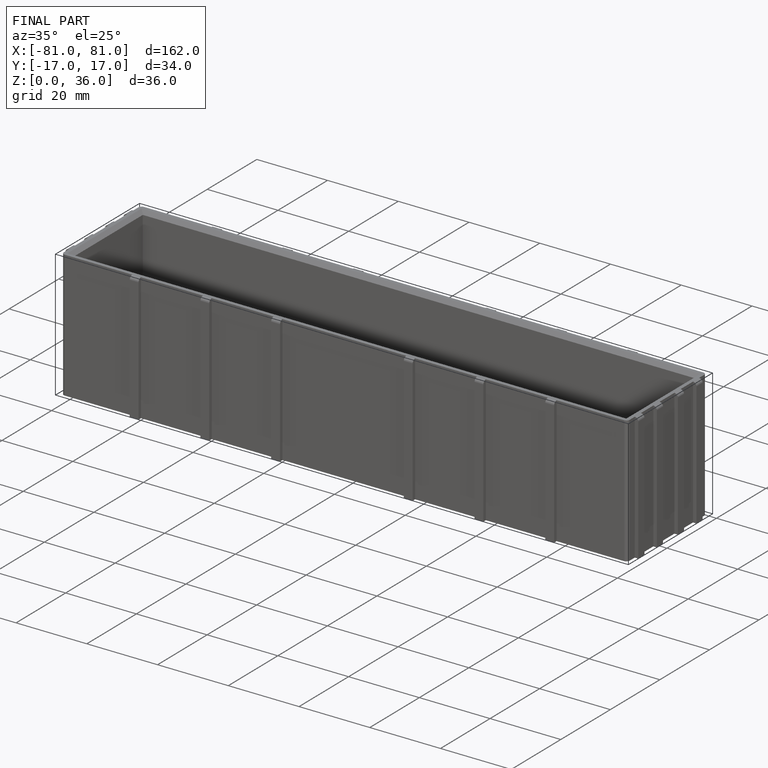
[diagram: finished part — iso view with bounding-box wireframe]
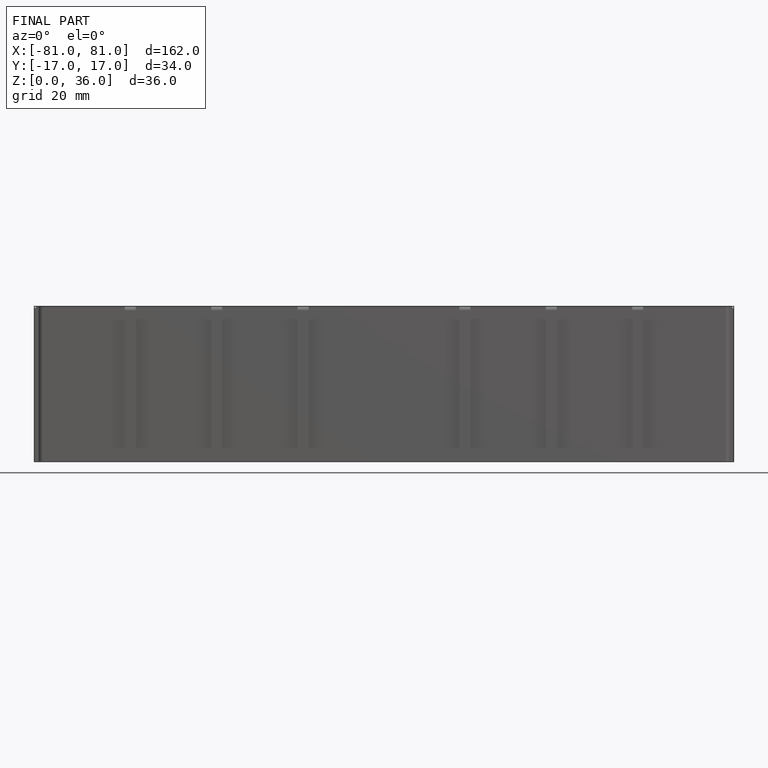
[diagram: finished part — front view with bounding-box wireframe]
